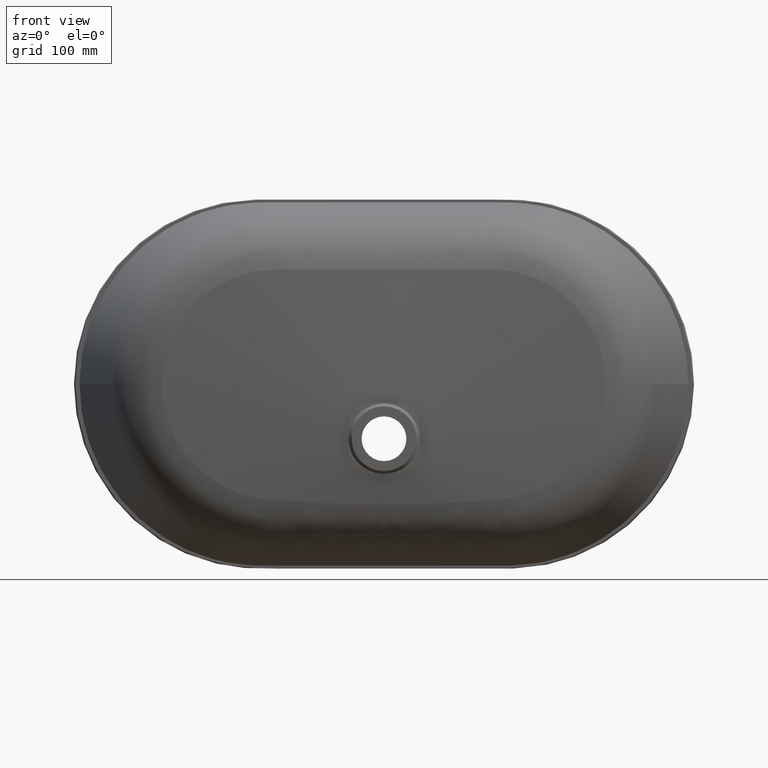
[diagram: clean part render]
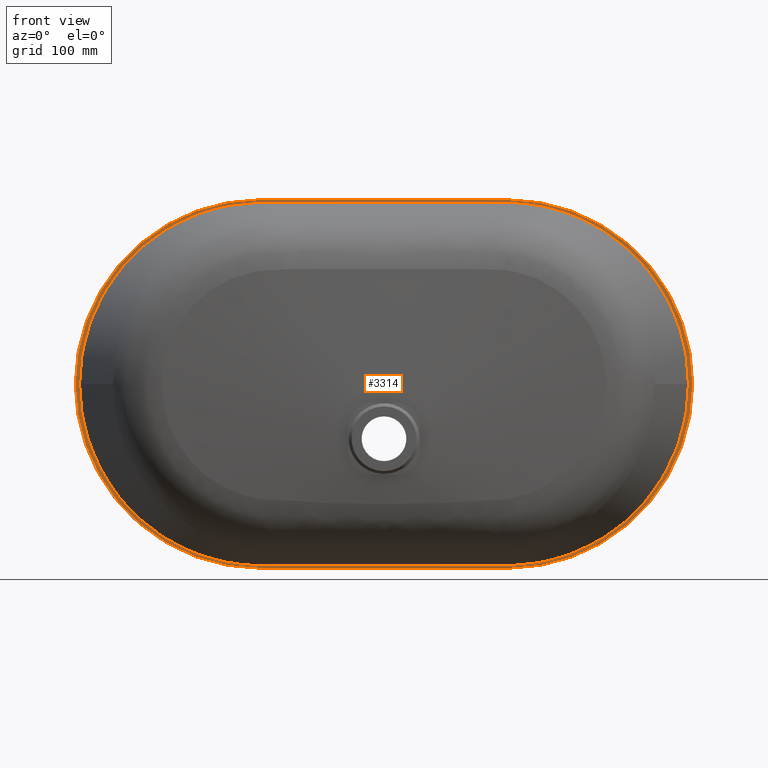
[diagram: same view with one face highlighted and labeled with its STEP entity id]
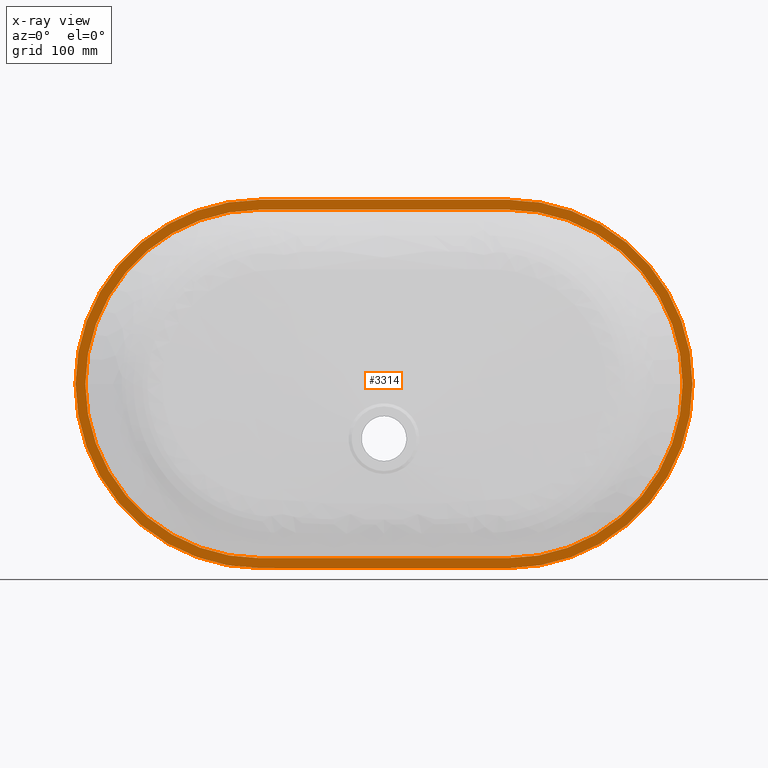
[diagram: x-ray of the same camera — body ghosted, the highlighted face saturated]
A machine part, front view. The second image highlights one B-rep face of the part: STEP entity #3314.
The next image is the same camera in x-ray: the body ghosted, the highlighted face saturated — about 0% of this face is hidden behind the body in this view.
In plain terms, the highlighted planar face has unit normal (0, 1, 0).
Its self-contained STEP definition (entity closure, byte-faithful):
#1 = AXIS2_PLACEMENT_3D ( 'NONE', #11314, #4884, #12389 ) ;
#516 = DIRECTION ( 'NONE',  ( -1.000000000000000000, -0.0000000000000000000, -0.0000000000000000000 ) ) ;
#534 = DIRECTION ( 'NONE',  ( 0.0000000000000000000, 1.000000000000000000, 0.0000000000000000000 ) ) ;
#787 = DIRECTION ( 'NONE',  ( 0.0000000000000000000, 0.0000000000000000000, 1.000000000000000000 ) ) ;
#1423 = EDGE_CURVE ( 'NONE', #5302, #9321, #1927, .T. ) ;
#1514 = EDGE_CURVE ( 'NONE', #8611, #9670, #7291, .T. ) ;
#1750 = VECTOR ( 'NONE', #5370, 1000.000000000000000 ) ;
#1766 = CARTESIAN_POINT ( 'NONE',  ( -125.0000000000000300, -10.00000000000000000, 185.0000000000000300 ) ) ;
#1782 = CARTESIAN_POINT ( 'NONE',  ( -125.0000000000000300, -10.00000000000000000, 175.0000000000000300 ) ) ;
#1896 = DIRECTION ( 'NONE',  ( 0.0000000000000000000, 0.0000000000000000000, 1.000000000000000000 ) ) ;
#1927 = CIRCLE ( 'NONE', #10667, 185.0000000000000300 ) ;
#2161 = AXIS2_PLACEMENT_3D ( 'NONE', #5157, #12655, #6233 ) ;
#2445 = VECTOR ( 'NONE', #11038, 1000.000000000000000 ) ;
#2630 = CARTESIAN_POINT ( 'NONE',  ( 125.0000000000000300, -10.00000000000000000, -185.0000000000000300 ) ) ;
#3141 = ORIENTED_EDGE ( 'NONE', *, *, #5829, .F. ) ;
#3314 = ADVANCED_FACE ( 'NONE', ( #3450, #6292 ), #5877, .F. ) ;
#3450 = FACE_BOUND ( 'NONE', #13693, .T. ) ;
#3528 = CARTESIAN_POINT ( 'NONE',  ( -125.0000000000000300, -10.00000000000000000, 185.0000000000000300 ) ) ;
#3790 = ORIENTED_EDGE ( 'NONE', *, *, #1514, .F. ) ;
#4747 = EDGE_CURVE ( 'NONE', #9670, #5302, #5280, .T. ) ;
#4884 = DIRECTION ( 'NONE',  ( 0.0000000000000000000, 1.000000000000000000, 0.0000000000000000000 ) ) ;
#4967 = VECTOR ( 'NONE', #11441, 1000.000000000000000 ) ;
#5157 = CARTESIAN_POINT ( 'NONE',  ( 125.0000000000000300, -10.00000000000000000, -1.244749062628699500E-014 ) ) ;
#5261 = CARTESIAN_POINT ( 'NONE',  ( -125.0000000000000300, -10.00000000000000000, -175.0000000000000300 ) ) ;
#5280 = LINE ( 'NONE', #3528, #2445 ) ;
#5302 = VERTEX_POINT ( 'NONE', #11405 ) ;
#5370 = DIRECTION ( 'NONE',  ( -1.000000000000000000, -0.0000000000000000000, -0.0000000000000000000 ) ) ;
#5471 = ORIENTED_EDGE ( 'NONE', *, *, #4747, .F. ) ;
#5645 = AXIS2_PLACEMENT_3D ( 'NONE', #6913, #534, #8029 ) ;
#5829 = EDGE_CURVE ( 'NONE', #9321, #8611, #10323, .T. ) ;
#5877 = PLANE ( 'NONE',  #5645 ) ;
#6233 = DIRECTION ( 'NONE',  ( 0.0000000000000000000, 0.0000000000000000000, 1.000000000000000000 ) ) ;
#6292 = FACE_OUTER_BOUND ( 'NONE', #7154, .T. ) ;
#6372 = CARTESIAN_POINT ( 'NONE',  ( -125.0000000000000300, -10.00000000000000000, -1.244749062628699500E-014 ) ) ;
#6913 = CARTESIAN_POINT ( 'NONE',  ( -125.0000000000000300, -10.00000000000000000, -1.244749062628699500E-014 ) ) ;
#7154 = EDGE_LOOP ( 'NONE', ( #3790, #3141, #11733, #5471 ) ) ;
#7208 = DIRECTION ( 'NONE',  ( 0.0000000000000000000, 1.000000000000000000, 0.0000000000000000000 ) ) ;
#7291 = CIRCLE ( 'NONE', #12127, 185.0000000000000300 ) ;
#7773 = CARTESIAN_POINT ( 'NONE',  ( 125.0000000000000300, -10.00000000000000000, 175.0000000000000300 ) ) ;
#7996 = VERTEX_POINT ( 'NONE', #5261 ) ;
#8011 = CARTESIAN_POINT ( 'NONE',  ( -125.0000000000000300, -10.00000000000000000, -175.0000000000000300 ) ) ;
#8029 = DIRECTION ( 'NONE',  ( 0.0000000000000000000, -0.0000000000000000000, 1.000000000000000000 ) ) ;
#8154 = LINE ( 'NONE', #10360, #4967 ) ;
#8358 = ORIENTED_EDGE ( 'NONE', *, *, #12113, .T. ) ;
#8611 = VERTEX_POINT ( 'NONE', #13882 ) ;
#9011 = LINE ( 'NONE', #8011, #11856 ) ;
#9051 = ORIENTED_EDGE ( 'NONE', *, *, #10397, .T. ) ;
#9321 = VERTEX_POINT ( 'NONE', #2630 ) ;
#9495 = EDGE_CURVE ( 'NONE', #11393, #13522, #8154, .T. ) ;
#9670 = VERTEX_POINT ( 'NONE', #1766 ) ;
#9954 = EDGE_CURVE ( 'NONE', #7996, #11393, #13211, .T. ) ;
#10323 = LINE ( 'NONE', #11803, #1750 ) ;
#10343 = CIRCLE ( 'NONE', #2161, 175.0000000000000300 ) ;
#10360 = CARTESIAN_POINT ( 'NONE',  ( -125.0000000000000300, -10.00000000000000000, 175.0000000000000300 ) ) ;
#10397 = EDGE_CURVE ( 'NONE', #13522, #13362, #10343, .T. ) ;
#10516 = ORIENTED_EDGE ( 'NONE', *, *, #9495, .T. ) ;
#10667 = AXIS2_PLACEMENT_3D ( 'NONE', #13629, #7208, #787 ) ;
#10673 = ORIENTED_EDGE ( 'NONE', *, *, #9954, .T. ) ;
#11018 = CARTESIAN_POINT ( 'NONE',  ( 125.0000000000000300, -10.00000000000000000, -175.0000000000000300 ) ) ;
#11038 = DIRECTION ( 'NONE',  ( 1.000000000000000000, 0.0000000000000000000, 0.0000000000000000000 ) ) ;
#11314 = CARTESIAN_POINT ( 'NONE',  ( -125.0000000000000300, -10.00000000000000000, -1.244749062628699500E-014 ) ) ;
#11393 = VERTEX_POINT ( 'NONE', #1782 ) ;
#11405 = CARTESIAN_POINT ( 'NONE',  ( 125.0000000000000300, -10.00000000000000000, 185.0000000000000300 ) ) ;
#11441 = DIRECTION ( 'NONE',  ( 1.000000000000000000, 0.0000000000000000000, 0.0000000000000000000 ) ) ;
#11733 = ORIENTED_EDGE ( 'NONE', *, *, #1423, .F. ) ;
#11803 = CARTESIAN_POINT ( 'NONE',  ( -125.0000000000000300, -10.00000000000000000, -185.0000000000000300 ) ) ;
#11856 = VECTOR ( 'NONE', #516, 1000.000000000000000 ) ;
#12113 = EDGE_CURVE ( 'NONE', #13362, #7996, #9011, .T. ) ;
#12127 = AXIS2_PLACEMENT_3D ( 'NONE', #6372, #13870, #1896 ) ;
#12389 = DIRECTION ( 'NONE',  ( 0.0000000000000000000, 0.0000000000000000000, 1.000000000000000000 ) ) ;
#12655 = DIRECTION ( 'NONE',  ( 0.0000000000000000000, 1.000000000000000000, 0.0000000000000000000 ) ) ;
#13211 = CIRCLE ( 'NONE', #1, 175.0000000000000300 ) ;
#13362 = VERTEX_POINT ( 'NONE', #11018 ) ;
#13522 = VERTEX_POINT ( 'NONE', #7773 ) ;
#13629 = CARTESIAN_POINT ( 'NONE',  ( 125.0000000000000300, -10.00000000000000000, -1.244749062628699500E-014 ) ) ;
#13693 = EDGE_LOOP ( 'NONE', ( #8358, #10673, #10516, #9051 ) ) ;
#13870 = DIRECTION ( 'NONE',  ( 0.0000000000000000000, 1.000000000000000000, 0.0000000000000000000 ) ) ;
#13882 = CARTESIAN_POINT ( 'NONE',  ( -125.0000000000000300, -10.00000000000000000, -185.0000000000000300 ) ) ;